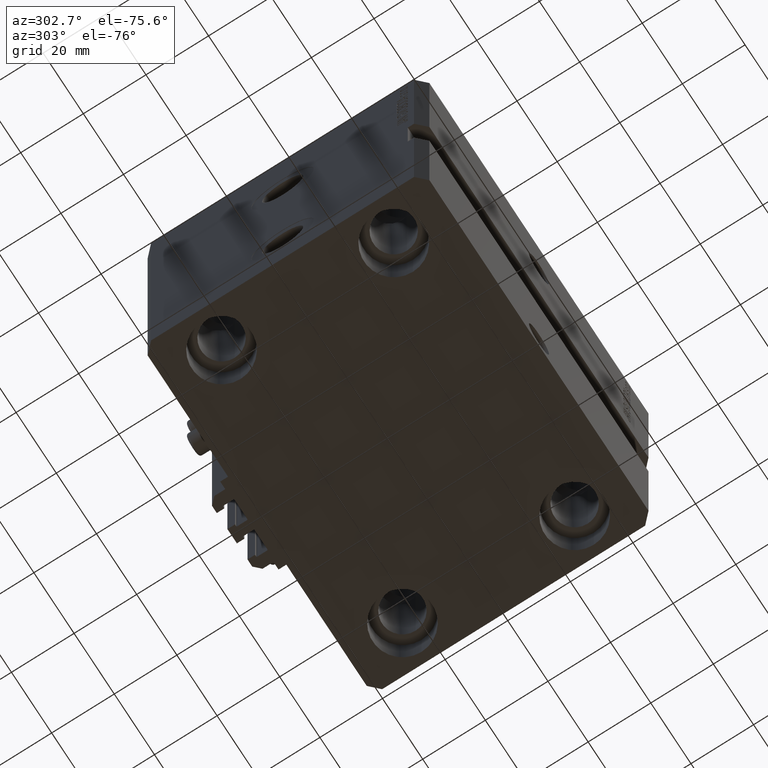
[diagram: clean part render]
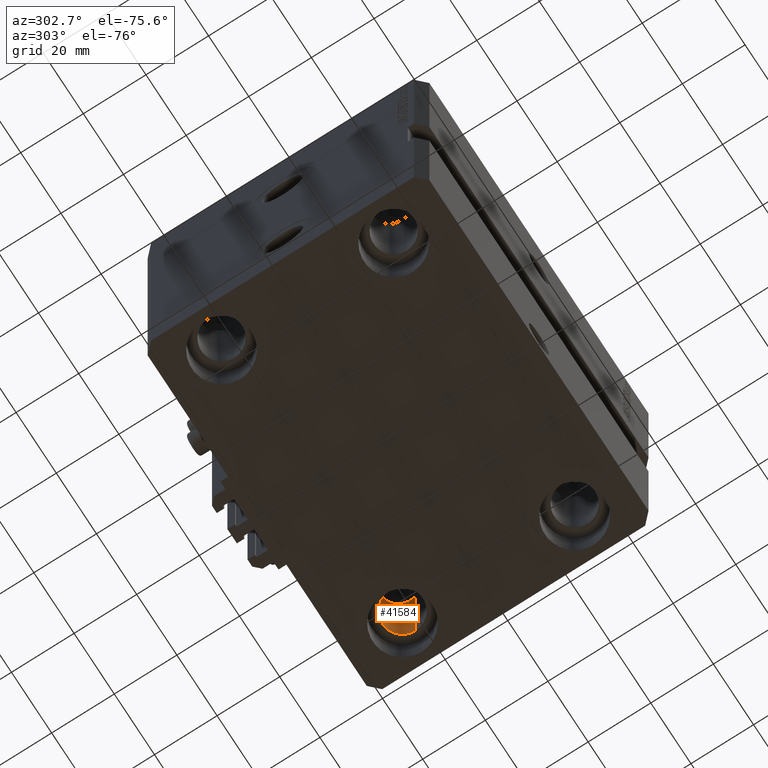
[diagram: same view with one face highlighted and labeled with its STEP entity id]
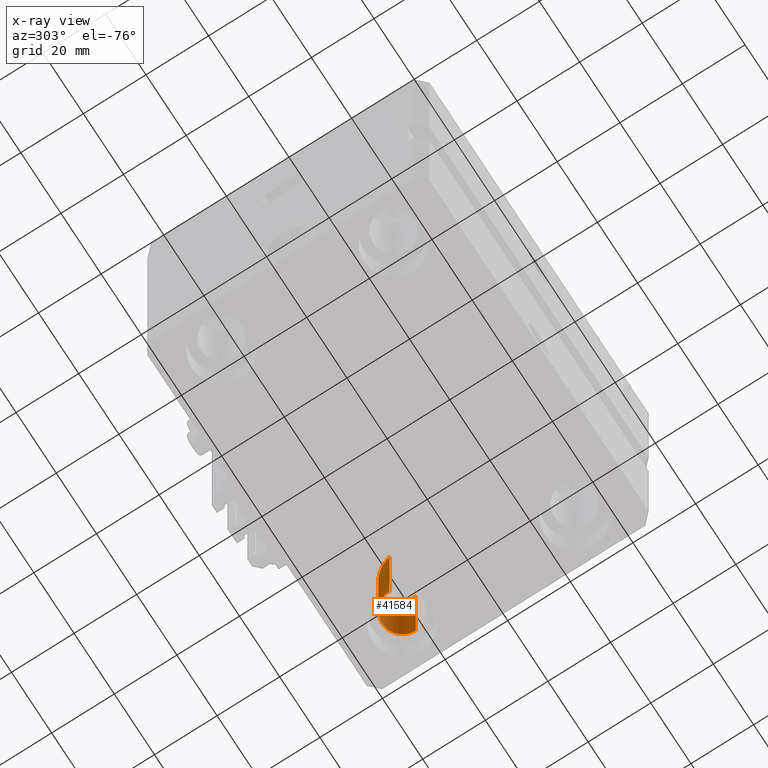
[diagram: x-ray of the same camera — body ghosted, the highlighted face saturated]
A machine part, auxiliary view. The second image highlights one B-rep face of the part: STEP entity #41584.
The next image is the same camera in x-ray: the body ghosted, the highlighted face saturated — about 19% of this face is hidden behind the body in this view.
In plain terms, the highlighted cylindrical surface (edge-blend (fillet) strip) has radius 6.5 mm, axis along (0, 0, 1).
Its self-contained STEP definition (entity closure, byte-faithful):
#935 =( BOUNDED_CURVE ( )  B_SPLINE_CURVE ( 3, ( #8238, #3821, #41957, #16102 ),
 .UNSPECIFIED., .F., .F. ) 
 B_SPLINE_CURVE_WITH_KNOTS ( ( 4, 4 ),
 ( 1.570796326794896558, 4.712388980384689674 ),
 .UNSPECIFIED. ) 
 CURVE ( )  GEOMETRIC_REPRESENTATION_ITEM ( )  RATIONAL_B_SPLINE_CURVE ( ( 1.000000000000000000, 0.3333333333333333703, 0.3333333333333333703, 1.000000000000000000 ) ) 
 REPRESENTATION_ITEM ( '' )  );
#1000 = LINE ( 'NONE', #16012, #47938 ) ;
#1807 = ORIENTED_EDGE ( 'NONE', *, *, #24413, .T. ) ;
#2966 = ORIENTED_EDGE ( 'NONE', *, *, #40681, .T. ) ;
#3821 = CARTESIAN_POINT ( 'NONE',  ( 51.50000000000000000, 40.50000000000001421, -68.00000000000000000 ) ) ;
#4231 = EDGE_LOOP ( 'NONE', ( #43883, #14835, #2966, #1807 ) ) ;
#7802 = DIRECTION ( 'NONE',  ( 0.000000000000000000, 0.000000000000000000, -1.000000000000000000 ) ) ;
#8238 = CARTESIAN_POINT ( 'NONE',  ( 51.50000000000000000, 27.50000000000001776, -55.00000000000000000 ) ) ;
#10311 = VECTOR ( 'NONE', #43898, 1000.000000000000000 ) ;
#10422 = CARTESIAN_POINT ( 'NONE',  ( 38.50000000000000000, 27.50000000000001776, -105.0000000000000000 ) ) ;
#14696 = DIRECTION ( 'NONE',  ( -1.000000000000000000, 0.000000000000000000, 0.000000000000000000 ) ) ;
#14835 = ORIENTED_EDGE ( 'NONE', *, *, #22220, .T. ) ;
#15960 = DIRECTION ( 'NONE',  ( 1.000000000000000000, 0.000000000000000000, 0.000000000000000000 ) ) ;
#16012 = CARTESIAN_POINT ( 'NONE',  ( 51.50000000000000000, 27.50000000000001776, -105.0000000000000000 ) ) ;
#16102 = CARTESIAN_POINT ( 'NONE',  ( 38.50000000000000000, 27.50000000000001776, -55.00000000000000000 ) ) ;
#17025 = AXIS2_PLACEMENT_3D ( 'NONE', #44958, #7802, #14696 ) ;
#17681 = VERTEX_POINT ( 'NONE', #22848 ) ;
#19797 = VERTEX_POINT ( 'NONE', #20903 ) ;
#20903 = CARTESIAN_POINT ( 'NONE',  ( 51.50000000000000000, 27.50000000000001776, -55.00000000000000000 ) ) ;
#21231 = AXIS2_PLACEMENT_3D ( 'NONE', #42537, #23849, #15960 ) ;
#22220 = EDGE_CURVE ( 'NONE', #17681, #39339, #38234, .T. ) ;
#22848 = CARTESIAN_POINT ( 'NONE',  ( 38.50000000000000000, 27.50000000000001776, -92.00000000000000000 ) ) ;
#23849 = DIRECTION ( 'NONE',  ( -0.000000000000000000, -0.000000000000000000, 1.000000000000000000 ) ) ;
#24413 = EDGE_CURVE ( 'NONE', #19797, #41085, #935, .T. ) ;
#26803 = FACE_OUTER_BOUND ( 'NONE', #4231, .T. ) ;
#27909 = CARTESIAN_POINT ( 'NONE',  ( 51.50000000000000000, 27.50000000000001776, -92.00000000000000000 ) ) ;
#31214 = CYLINDRICAL_SURFACE ( 'NONE', #21231, 6.499999999999999112 ) ;
#32540 = CARTESIAN_POINT ( 'NONE',  ( 38.50000000000000000, 27.50000000000001776, -55.00000000000000000 ) ) ;
#34944 = DIRECTION ( 'NONE',  ( -0.000000000000000000, -0.000000000000000000, 1.000000000000000000 ) ) ;
#38234 = CIRCLE ( 'NONE', #17025, 6.499999999999999112 ) ;
#39339 = VERTEX_POINT ( 'NONE', #27909 ) ;
#40681 = EDGE_CURVE ( 'NONE', #39339, #19797, #1000, .T. ) ;
#41085 = VERTEX_POINT ( 'NONE', #32540 ) ;
#41584 = ADVANCED_FACE ( 'NONE', ( #26803 ), #31214, .F. ) ;
#41957 = CARTESIAN_POINT ( 'NONE',  ( 38.49999999999999289, 40.50000000000001421, -68.00000000000000000 ) ) ;
#42537 = CARTESIAN_POINT ( 'NONE',  ( 45.00000000000000000, 27.50000000000001776, -105.0000000000000000 ) ) ;
#43176 = LINE ( 'NONE', #10422, #10311 ) ;
#43883 = ORIENTED_EDGE ( 'NONE', *, *, #47531, .F. ) ;
#43898 = DIRECTION ( 'NONE',  ( -0.000000000000000000, -0.000000000000000000, 1.000000000000000000 ) ) ;
#44958 = CARTESIAN_POINT ( 'NONE',  ( 45.00000000000000000, 27.50000000000001776, -92.00000000000000000 ) ) ;
#47531 = EDGE_CURVE ( 'NONE', #17681, #41085, #43176, .T. ) ;
#47938 = VECTOR ( 'NONE', #34944, 1000.000000000000000 ) ;